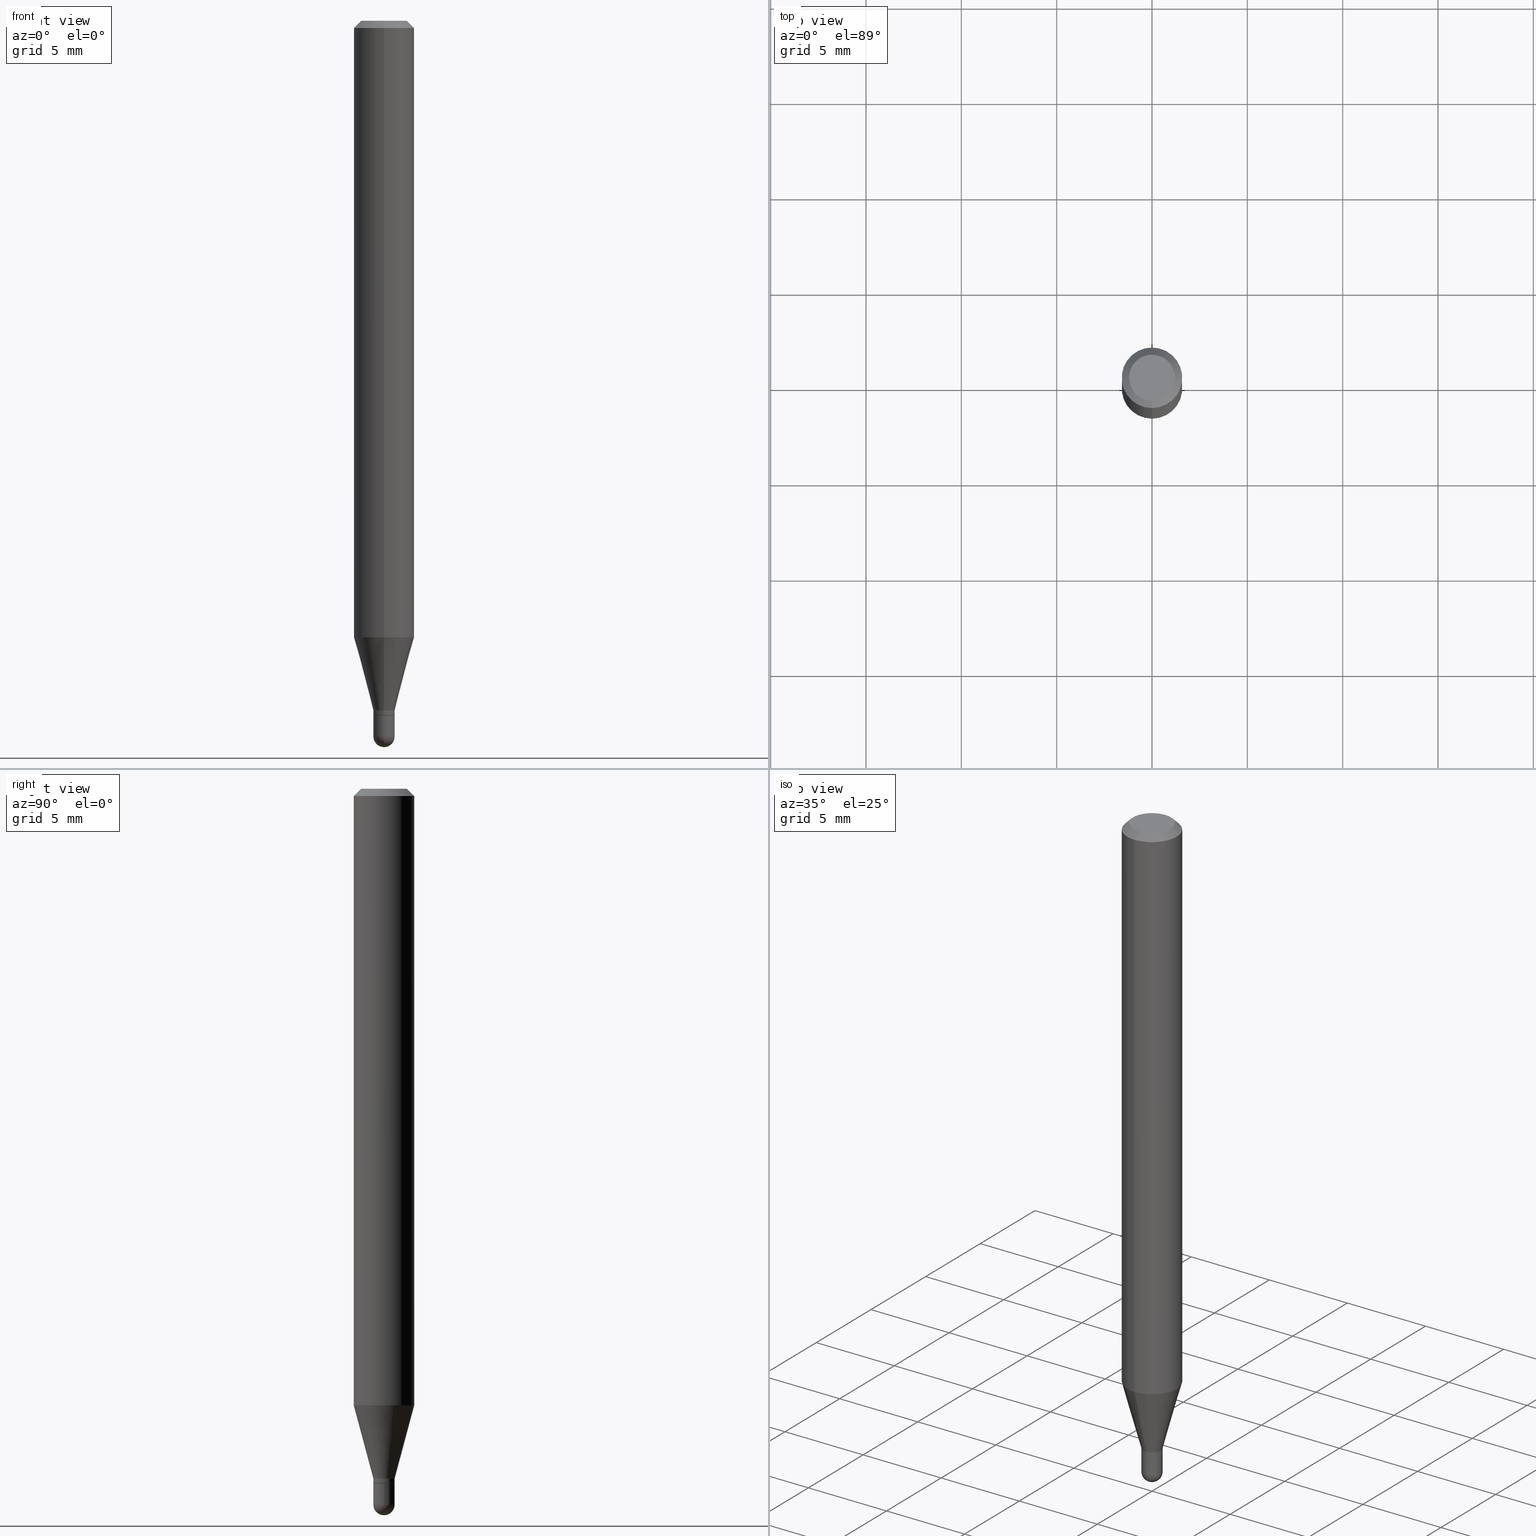
[diagram: canonical four-view strip — front | top / right | iso, engineering-drawing reading convention]
A machine part, canonical four-view strip (front | top / right | iso — engineering-drawing reading convention). The complete STEP part file that produces these views, byte-faithful:
ISO-10303-21;
HEADER;
FILE_DESCRIPTION (( 'STEP AP203' ),
    '1' );
FILE_NAME ('02507.STEP',
    '2024-03-07T20:09:17',
    ( '' ),
    ( '' ),
    'SwSTEP 2.0',
    'SolidWorks 2023',
    '' );
FILE_SCHEMA (( 'CONFIG_CONTROL_DESIGN' ));
ENDSEC;

DATA;
#1 = DIRECTION ( 'NONE',  ( -1.000000000000000000, 6.982962677686265922E-15, -4.876176775795935793E-29 ) ) ;
#2 = ORIENTED_EDGE ( 'NONE', *, *, #244, .F. ) ;
#3 = ADVANCED_FACE ( 'NONE', ( #24 ), #445, .T. ) ;
#4 = AXIS2_PLACEMENT_3D ( 'NONE', #192, #302, #383 ) ;
#5 = VECTOR ( 'NONE', #463, 39.37007874015748143 ) ;
#6 = AXIS2_PLACEMENT_3D ( 'NONE', #30, #499, #507 ) ;
#7 = EDGE_CURVE ( 'NONE', #113, #418, #471, .T. ) ;
#8 = PERSON_AND_ORGANIZATION_ROLE ( 'design_supplier' ) ;
#9 = ADVANCED_FACE ( 'NONE', ( #448 ), #180, .T. ) ;
#10 = ORIENTED_EDGE ( 'NONE', *, *, #478, .F. ) ;
#11 = CONICAL_SURFACE ( 'NONE', #444, 0.02199999999999992240, 0.2617993877991502960 ) ;
#12 = APPROVAL_DATE_TIME ( #365, #279 ) ;
#13 = EDGE_LOOP ( 'NONE', ( #453, #57, #212, #45 ) ) ;
#14 = DIRECTION ( 'NONE',  ( -2.445462405092277740E-29, 3.491490505572446944E-15, 1.000000000000000000 ) ) ;
#15 = PERSON_AND_ORGANIZATION_ROLE ( 'creator' ) ;
#16 = APPROVAL_STATUS ( 'not_yet_approved' ) ;
#17 = VERTEX_POINT ( 'NONE', #185 ) ;
#18 = FACE_OUTER_BOUND ( 'NONE', #236, .T. ) ;
#19 = ADVANCED_FACE ( 'NONE', ( #101 ), #338, .F. ) ;
#20 = ORIENTED_EDGE ( 'NONE', *, *, #395, .F. ) ;
#21 = AXIS2_PLACEMENT_3D ( 'NONE', #378, #79, #28 ) ;
#22 = CARTESIAN_POINT ( 'NONE',  ( 0.000000000000000000, 0.000000000000000000, 0.000000000000000000 ) ) ;
#23 = CIRCLE ( 'NONE', #129, 0.04749999999999999362 ) ;
#24 = FACE_OUTER_BOUND ( 'NONE', #428, .T. ) ;
#25 = CARTESIAN_POINT ( 'NONE',  ( 1.563194018672584673E-16, 0.02199999999999488476, -1.478000000000000425 ) ) ;
#26 = DIRECTION ( 'NONE',  ( 2.445462405092277740E-29, -3.491490505572446944E-15, -1.000000000000000000 ) ) ;
#27 = DIRECTION ( 'NONE',  ( -6.982962677686265922E-15, -1.000000000000000000, 4.370956789862821150E-15 ) ) ;
#28 = DIRECTION ( 'NONE',  ( 1.000000000000000000, -6.982962677686245411E-15, 0.000000000000000000 ) ) ;
#29 = CARTESIAN_POINT ( 'NONE',  ( 3.506802268069485929E-29, -5.006784239901070239E-15, -1.434000000000000163 ) ) ;
#30 = CARTESIAN_POINT ( 'NONE',  ( 0.000000000000000000, 0.000000000000000000, 0.000000000000000000 ) ) ;
#31 = DIRECTION ( 'NONE',  ( -6.982962677686265133E-15, -1.000000000000000000, 0.000000000000000000 ) ) ;
#32 = VECTOR ( 'NONE', #36, 39.37007874015748143 ) ;
#33 = CARTESIAN_POINT ( 'NONE',  ( 3.612521529705438074E-29, -5.163103641768293997E-15, -1.478000000000000203 ) ) ;
#34 = DIRECTION ( 'NONE',  ( -2.445462405092277460E-29, 3.491490505572446944E-15, 1.000000000000000000 ) ) ;
#35 = ADVANCED_FACE ( 'NONE', ( #217 ), #331, .T. ) ;
#36 = DIRECTION ( 'NONE',  ( -2.445468806185136877E-29, 3.491481338843145188E-15, 1.000000000000000000 ) ) ;
#37 = FACE_OUTER_BOUND ( 'NONE', #417, .T. ) ;
#38 = LINE ( 'NONE', #393, #355 ) ;
#39 = CARTESIAN_POINT ( 'NONE',  ( 4.440892098500625669E-16, 0.06250000000000000000, -2.182181565982779340E-16 ) ) ;
#40 = CARTESIAN_POINT ( 'NONE',  ( 8.024699591735033216E-45, -1.145720432106038459E-30, -3.281465122925178518E-16 ) ) ;
#41 = CARTESIAN_POINT ( 'NONE',  ( 3.614402895541633401E-29, -5.160409418810170442E-15, -1.478000000000000425 ) ) ;
#42 = EDGE_LOOP ( 'NONE', ( #53, #464 ) ) ;
#43 = EDGE_CURVE ( 'NONE', #483, #501, #222, .T. ) ;
#44 = LINE ( 'NONE', #202, #161 ) ;
#45 = ORIENTED_EDGE ( 'NONE', *, *, #247, .F. ) ;
#46 = CC_DESIGN_PERSON_AND_ORGANIZATION_ASSIGNMENT ( #91, #49, ( #93 ) ) ;
#47 = PERSON_AND_ORGANIZATION_ROLE ( 'creator' ) ;
#48 = VECTOR ( 'NONE', #350, 39.37007874015748143 ) ;
#49 = PERSON_AND_ORGANIZATION_ROLE ( 'classification_officer' ) ;
#50 = ADVANCED_FACE ( 'NONE', ( #68 ), #385, .T. ) ;
#51 = ORIENTED_EDGE ( 'NONE', *, *, #404, .F. ) ;
#52 = APPROVAL_ROLE ( '' ) ;
#53 = ORIENTED_EDGE ( 'NONE', *, *, #43, .F. ) ;
#54 = CLOSED_SHELL ( 'NONE', ( #3, #156, #503, #35, #423, #232, #163, #50, #19, #136, #267, #447 ) ) ;
#55 = AXIS2_PLACEMENT_3D ( 'NONE', #258, #147, #218 ) ;
#56 = EDGE_CURVE ( 'NONE', #319, #201, #344, .T. ) ;
#57 = ORIENTED_EDGE ( 'NONE', *, *, #56, .T. ) ;
#58 = CARTESIAN_POINT ( 'NONE',  ( 4.440892098500938748E-16, 0.06249999999999995143, -0.01500000000000054588 ) ) ;
#59 = DATE_TIME_ROLE ( 'creation_date' ) ;
#60 = DIRECTION ( 'NONE',  ( -2.445462405092277460E-29, 3.491490505572446944E-15, 1.000000000000000000 ) ) ;
#61 = ORIENTED_EDGE ( 'NONE', *, *, #139, .T. ) ;
#62 =( CONVERSION_BASED_UNIT ( 'INCH', #262 ) LENGTH_UNIT ( ) NAMED_UNIT ( #495 ) );
#63 = DIRECTION ( 'NONE',  ( -6.982962677686265133E-15, -1.000000000000000000, 0.000000000000000000 ) ) ;
#64 = ORIENTED_EDGE ( 'NONE', *, *, #489, .T. ) ;
#65 = PERSON ( 'UNSPECIFIED', 'UNSPECIFIED', 'UNSPECIFIED', ('UNSPECIFIED'), ('UNSPECIFIED'), ('UNSPECIFIED') ) ;
#66 = AXIS2_PLACEMENT_3D ( 'NONE', #421, #431, #510 ) ;
#67 = CC_DESIGN_SECURITY_CLASSIFICATION ( #93, ( #78 ) ) ;
#68 = FACE_OUTER_BOUND ( 'NONE', #157, .T. ) ;
#69 = DIRECTION ( 'NONE',  ( -2.445462405092277740E-29, 3.491490505572446944E-15, 1.000000000000000000 ) ) ;
#70 = EDGE_CURVE ( 'NONE', #368, #240, #504, .T. ) ;
#71 = ORIENTED_EDGE ( 'NONE', *, *, #159, .F. ) ;
#72 = DIRECTION ( 'NONE',  ( -2.445462405092277740E-29, 3.491490505572446944E-15, 1.000000000000000000 ) ) ;
#73 = CYLINDRICAL_SURFACE ( 'NONE', #6, 0.02199999999999992240 ) ;
#74 = COORDINATED_UNIVERSAL_TIME_OFFSET ( 5, 0, .BEHIND. ) ;
#75 = VERTEX_POINT ( 'NONE', #430 ) ;
#76 = DIRECTION ( 'NONE',  ( 1.839019923739600315E-15, 0.2588190451025249583, 0.9659258262890670910 ) ) ;
#77 = AXIS2_PLACEMENT_3D ( 'NONE', #449, #486, #343 ) ;
#78 = PRODUCT_DEFINITION_FORMATION_WITH_SPECIFIED_SOURCE ( 'ANY', '', #281, .NOT_KNOWN. ) ;
#79 = DIRECTION ( 'NONE',  ( -2.445468806185136597E-29, 3.491481338843145583E-15, 1.000000000000000000 ) ) ;
#80 = DIRECTION ( 'NONE',  ( 1.000000000000000000, -6.982962677686266711E-15, 4.883557194083112901E-29 ) ) ;
#81 = CARTESIAN_POINT ( 'NONE',  ( -0.02199999999999999872, 1.563194018672220318E-16, -1.082165719856079240E-30 ) ) ;
#82 = ORIENTED_EDGE ( 'NONE', *, *, #250, .F. ) ;
#83 = VECTOR ( 'NONE', #306, 39.37007874015748143 ) ;
#84 = DIRECTION ( 'NONE',  ( -2.445468806185136597E-29, 3.491481338843145583E-15, 1.000000000000000000 ) ) ;
#85 = CIRCLE ( 'NONE', #397, 0.02199999999999992240 ) ;
#86 = ORIENTED_EDGE ( 'NONE', *, *, #177, .T. ) ;
#87 = EDGE_CURVE ( 'NONE', #418, #146, #196, .T. ) ;
#88 = DIRECTION ( 'NONE',  ( -2.445468806185136877E-29, 3.491481338843145188E-15, 1.000000000000000000 ) ) ;
#89 = VERTEX_POINT ( 'NONE', #506 ) ;
#90 = DATE_AND_TIME ( #440, #100 ) ;
#91 = PERSON_AND_ORGANIZATION ( #65, #223 ) ;
#92 = AXIS2_PLACEMENT_3D ( 'NONE', #158, #195, #398 ) ;
#93 = SECURITY_CLASSIFICATION ( '', '', #291 ) ;
#94 =( GEOMETRIC_REPRESENTATION_CONTEXT ( 3 ) GLOBAL_UNCERTAINTY_ASSIGNED_CONTEXT ( ( #269 ) ) GLOBAL_UNIT_ASSIGNED_CONTEXT ( ( #62, #137, #330 ) ) REPRESENTATION_CONTEXT ( 'NONE', 'WORKASPACE' ) );
#95 = APPROVAL_STATUS ( 'not_yet_approved' ) ;
#96 = ORIENTED_EDGE ( 'NONE', *, *, #489, .F. ) ;
#97 = ORIENTED_EDGE ( 'NONE', *, *, #318, .F. ) ;
#98 = DIRECTION ( 'NONE',  ( -2.445462405092277740E-29, 3.491490505572446944E-15, 1.000000000000000000 ) ) ;
#99 = VECTOR ( 'NONE', #488, 39.37007874015748143 ) ;
#100 = LOCAL_TIME ( 15, 9, 17.00000000000000000, #131 ) ;
#101 = FACE_OUTER_BOUND ( 'NONE', #371, .T. ) ;
#102 = ORIENTED_EDGE ( 'NONE', *, *, #314, .T. ) ;
#103 = APPLICATION_PROTOCOL_DEFINITION ( 'international standard', 'config_control_design', 1994, #484 ) ;
#104 = DIRECTION ( 'NONE',  ( -6.982962677686266711E-15, -1.000000000000000000, 0.000000000000000000 ) ) ;
#105 = ADVANCED_FACE ( 'NONE', ( #391 ), #115, .T. ) ;
#106 = DIRECTION ( 'NONE',  ( -1.807323732225330139E-15, -0.2588190451025181860, 0.9659258262890689783 ) ) ;
#107 = ORIENTED_EDGE ( 'NONE', *, *, #352, .T. ) ;
#108 = AXIS2_PLACEMENT_3D ( 'NONE', #389, #277, #386 ) ;
#109 = LOCAL_TIME ( 15, 9, 17.00000000000000000, #325 ) ;
#110 = CYLINDRICAL_SURFACE ( 'NONE', #77, 0.06250000000000000000 ) ;
#111 = DIRECTION ( 'NONE',  ( -6.982962677686266711E-15, -1.000000000000000000, 0.000000000000000000 ) ) ;
#112 = APPROVAL_STATUS ( 'not_yet_approved' ) ;
#113 = VERTEX_POINT ( 'NONE', #354 ) ;
#114 = ORIENTED_EDGE ( 'NONE', *, *, #247, .T. ) ;
#115 = CYLINDRICAL_SURFACE ( 'NONE', #396, 0.02199999999999999872 ) ;
#116 = CIRCLE ( 'NONE', #55, 0.02199999999999999872 ) ;
#117 = CC_DESIGN_APPROVAL ( #279, ( #406 ) ) ;
#118 = CARTESIAN_POINT ( 'NONE',  ( 3.002043058586750864E-16, 0.02199999999999494721, -1.424000000000000377 ) ) ;
#119 = PLANE ( 'NONE',  #407 ) ;
#120 = CARTESIAN_POINT ( 'NONE',  ( 3.612521529705438074E-29, -5.163103641768293997E-15, -1.478000000000000203 ) ) ;
#121 = ORIENTED_EDGE ( 'NONE', *, *, #194, .F. ) ;
#122 = DIRECTION ( 'NONE',  ( 1.000000000000000000, -6.982962677686265922E-15, 4.876176775795936353E-29 ) ) ;
#123 = CARTESIAN_POINT ( 'NONE',  ( -1.536251789090624606E-16, -0.02200000000000489411, -1.424000000000000377 ) ) ;
#124 = APPROVAL ( #112, 'UNSPECIFIED' ) ;
#125 = DIRECTION ( 'NONE',  ( 1.000000000000000000, -6.982962677686245411E-15, 0.000000000000000000 ) ) ;
#126 = ORIENTED_EDGE ( 'NONE', *, *, #56, .F. ) ;
#127 = AXIS2_PLACEMENT_3D ( 'NONE', #265, #197, #283 ) ;
#128 = DIRECTION ( 'NONE',  ( -6.982962677686267499E-15, -1.000000000000000000, 0.000000000000000000 ) ) ;
#129 = AXIS2_PLACEMENT_3D ( 'NONE', #40, #419, #155 ) ;
#130 = EDGE_LOOP ( 'NONE', ( #166, #468, #290, #71 ) ) ;
#131 = COORDINATED_UNIVERSAL_TIME_OFFSET ( 5, 0, .BEHIND. ) ;
#132 = LINE ( 'NONE', #436, #455 ) ;
#133 = DIRECTION ( 'NONE',  ( 2.445462405092277740E-29, -3.491490505572446944E-15, -1.000000000000000000 ) ) ;
#134 = CIRCLE ( 'NONE', #276, 0.02199999999999999872 ) ;
#135 = ORIENTED_EDGE ( 'NONE', *, *, #194, .T. ) ;
#136 = ADVANCED_FACE ( 'NONE', ( #273 ), #189, .F. ) ;
#137 =( NAMED_UNIT ( * ) PLANE_ANGLE_UNIT ( ) SI_UNIT ( $, .RADIAN. ) );
#138 = ORIENTED_EDGE ( 'NONE', *, *, #364, .F. ) ;
#139 = EDGE_CURVE ( 'NONE', #501, #418, #239, .T. ) ;
#140 = CALENDAR_DATE ( 2024, 7, 3 ) ;
#141 = DIRECTION ( 'NONE',  ( -6.982962677686265922E-15, -1.000000000000000000, 3.491490505572446944E-15 ) ) ;
#142 = LINE ( 'NONE', #412, #150 ) ;
#143 = CIRCLE ( 'NONE', #249, 0.02199999999999999872 ) ;
#144 = DIRECTION ( 'NONE',  ( 1.000000000000000000, -6.982962677686245411E-15, 0.000000000000000000 ) ) ;
#145 = DESIGN_CONTEXT ( 'detailed design', #484, 'design' ) ;
#146 = VERTEX_POINT ( 'NONE', #118 ) ;
#147 = DIRECTION ( 'NONE',  ( -2.445468806185136597E-29, 3.491481338843145583E-15, 1.000000000000000000 ) ) ;
#148 = DIRECTION ( 'NONE',  ( 1.000000000000000000, -6.982962677686245411E-15, 0.000000000000000000 ) ) ;
#149 = EDGE_LOOP ( 'NONE', ( #126, #135, #114, #20 ) ) ;
#150 = VECTOR ( 'NONE', #60, 39.37007874015748143 ) ;
#151 = CARTESIAN_POINT ( 'NONE',  ( 1.563194018672214402E-16, 0.02199999999999992240, -7.681279112259355281E-17 ) ) ;
#152 = DIRECTION ( 'NONE',  ( 4.937700262164548042E-15, 0.7071067811865451302, -0.7071067811865499042 ) ) ;
#153 = APPROVAL_PERSON_ORGANIZATION ( #295, #279, #52 ) ;
#154 = CARTESIAN_POINT ( 'NONE',  ( 3.612521529705438074E-29, -5.163103641768293997E-15, -1.478000000000000203 ) ) ;
#155 = DIRECTION ( 'NONE',  ( -6.982962677686266711E-15, -1.000000000000000000, 3.491490505572446944E-15 ) ) ;
#156 = ADVANCED_FACE ( 'NONE', ( #37 ), #287, .T. ) ;
#157 = EDGE_LOOP ( 'NONE', ( #2, #227, #496, #437 ) ) ;
#158 = CARTESIAN_POINT ( 'NONE',  ( 3.482338464851404049E-29, -4.971882479935166076E-15, -1.424000000000000377 ) ) ;
#159 = EDGE_CURVE ( 'NONE', #240, #75, #366, .T. ) ;
#160 = DIRECTION ( 'NONE',  ( -2.445462405092277740E-29, 3.491490505572446944E-15, 1.000000000000000000 ) ) ;
#161 = VECTOR ( 'NONE', #76, 39.37007874015748143 ) ;
#162 = APPROVAL_PERSON_ORGANIZATION ( #458, #124, #337 ) ;
#163 = ADVANCED_FACE ( 'NONE', ( #379 ), #110, .T. ) ;
#164 = FACE_OUTER_BOUND ( 'NONE', #326, .T. ) ;
#165 = CYLINDRICAL_SURFACE ( 'NONE', #66, 0.02199999999999999872 ) ;
#166 = ORIENTED_EDGE ( 'NONE', *, *, #336, .F. ) ;
#167 = CARTESIAN_POINT ( 'NONE',  ( 3.112711572127344599E-29, -4.444150471517067241E-15, -1.272851942293461214 ) ) ;
#168 = CARTESIAN_POINT ( 'NONE',  ( 1.545430450278565143E-16, 0.02149999999999498840, -1.434000000000000163 ) ) ;
#169 = DIRECTION ( 'NONE',  ( -4.937700262164674260E-15, -0.7071067811865632269, 0.7071067811865319186 ) ) ;
#170 = ORIENTED_EDGE ( 'NONE', *, *, #285, .T. ) ;
#171 = VECTOR ( 'NONE', #106, 39.37007874015748143 ) ;
#172 = APPROVAL_DATE_TIME ( #90, #238 ) ;
#173 = DIRECTION ( 'NONE',  ( -6.982962677686265133E-15, -1.000000000000000000, 0.000000000000000000 ) ) ;
#174 = ORIENTED_EDGE ( 'NONE', *, *, #87, .T. ) ;
#175 = AXIS2_PLACEMENT_3D ( 'NONE', #266, #182, #409 ) ;
#176 = AXIS2_PLACEMENT_3D ( 'NONE', #255, #289, #173 ) ;
#177 = EDGE_CURVE ( 'NONE', #501, #483, #491, .T. ) ;
#178 = ORIENTED_EDGE ( 'NONE', *, *, #87, .F. ) ;
#179 = COORDINATED_UNIVERSAL_TIME_OFFSET ( 5, 0, .BEHIND. ) ;
#180 = SPHERICAL_SURFACE ( 'NONE', #424, 0.02200000000000009934 ) ;
#181 = APPLICATION_PROTOCOL_DEFINITION ( 'international standard', 'config_control_design', 1994, #456 ) ;
#182 = DIRECTION ( 'NONE',  ( -2.445462405092277740E-29, 3.491490505572446944E-15, 1.000000000000000000 ) ) ;
#183 = CC_DESIGN_PERSON_AND_ORGANIZATION_ASSIGNMENT ( #369, #15, ( #406 ) ) ;
#184 = AXIS2_PLACEMENT_3D ( 'NONE', #41, #84, #470 ) ;
#185 = CARTESIAN_POINT ( 'NONE',  ( -1.536251789090620662E-16, -0.02200000000000521330, -1.478000000000000425 ) ) ;
#186 = DIRECTION ( 'NONE',  ( -6.982962677686266711E-15, -1.000000000000000000, 0.000000000000000000 ) ) ;
#187 = EDGE_LOOP ( 'NONE', ( #405, #433, #263, #224 ) ) ;
#188 = DIRECTION ( 'NONE',  ( 6.982962677686265922E-15, 1.000000000000000000, -3.483106191921935554E-15 ) ) ;
#189 = PLANE ( 'NONE',  #108 ) ;
#190 = CARTESIAN_POINT ( 'NONE',  ( 3.505570357699780654E-29, -5.005051639738103749E-15, -1.433500000000000218 ) ) ;
#191 = DATE_AND_TIME ( #480, #426 ) ;
#192 = CARTESIAN_POINT ( 'NONE',  ( 3.505570357699780654E-29, -5.005051639738103749E-15, -1.433500000000000218 ) ) ;
#193 = CIRCLE ( 'NONE', #293, 0.06250000000000000000 ) ;
#194 = EDGE_CURVE ( 'NONE', #319, #370, #454, .T. ) ;
#195 = DIRECTION ( 'NONE',  ( -2.445462405092277740E-29, 3.491490505572446944E-15, 1.000000000000000000 ) ) ;
#196 = LINE ( 'NONE', #151, #322 ) ;
#197 = DIRECTION ( 'NONE',  ( -2.445462405092277740E-29, 3.491490505572446944E-15, 1.000000000000000000 ) ) ;
#198 = CARTESIAN_POINT ( 'NONE',  ( 3.665381160523413866E-29, -5.241263342701905875E-15, -1.500000000000000444 ) ) ;
#199 = EDGE_CURVE ( 'NONE', #75, #17, #116, .T. ) ;
#200 = CIRCLE ( 'NONE', #481, 0.06250000000000000000 ) ;
#201 = VERTEX_POINT ( 'NONE', #58 ) ;
#202 = CARTESIAN_POINT ( 'NONE',  ( 1.563194018672562733E-16, 0.02199999999999494721, -1.424000000000000377 ) ) ;
#203 = VERTEX_POINT ( 'NONE', #332 ) ;
#204 = CARTESIAN_POINT ( 'NONE',  ( 3.482338464851404049E-29, -4.971882479935166076E-15, -1.424000000000000377 ) ) ;
#205 = CIRCLE ( 'NONE', #333, 0.04749999999999999362 ) ;
#206 = CARTESIAN_POINT ( 'NONE',  ( 3.668193607638497220E-31, -5.237235758358785737E-17, -0.01500000000000032904 ) ) ;
#207 = COORDINATED_UNIVERSAL_TIME_OFFSET ( 5, 0, .BEHIND. ) ;
#208 = DIRECTION ( 'NONE',  ( 1.000000000000000000, 0.000000000000000000, 0.000000000000000000 ) ) ;
#209 = ORIENTED_EDGE ( 'NONE', *, *, #388, .F. ) ;
#210 = PRODUCT_RELATED_PRODUCT_CATEGORY ( 'detail', '', ( #281 ) ) ;
#211 = CALENDAR_DATE ( 2024, 7, 3 ) ;
#212 = ORIENTED_EDGE ( 'NONE', *, *, #298, .F. ) ;
#213 = AXIS2_PLACEMENT_3D ( 'NONE', #414, #451, #104 ) ;
#214 = DIRECTION ( 'NONE',  ( 0.000000000000000000, 0.000000000000000000, 1.000000000000000000 ) ) ;
#215 = ORIENTED_EDGE ( 'NONE', *, *, #43, .T. ) ;
#216 = MECHANICAL_CONTEXT ( 'NONE', #456, 'mechanical' ) ;
#217 = FACE_OUTER_BOUND ( 'NONE', #13, .T. ) ;
#218 = DIRECTION ( 'NONE',  ( 1.000000000000000000, -6.982962677686245411E-15, 0.000000000000000000 ) ) ;
#219 = EDGE_LOOP ( 'NONE', ( #178, #296, #394, #246 ) ) ;
#220 = DATE_TIME_ROLE ( 'classification_date' ) ;
#221 = CARTESIAN_POINT ( 'NONE',  ( 3.506802268069485929E-29, -5.006784239901070239E-15, -1.434000000000000163 ) ) ;
#222 = CIRCLE ( 'NONE', #213, 0.02149999999999999481 ) ;
#223 = ORGANIZATION ( 'UNSPECIFIED', 'UNSPECIFIED', '' ) ;
#224 = ORIENTED_EDGE ( 'NONE', *, *, #285, .F. ) ;
#225 = CARTESIAN_POINT ( 'NONE',  ( 3.668193607638497220E-31, -5.237235758358785737E-17, -0.01500000000000032904 ) ) ;
#226 = DIRECTION ( 'NONE',  ( -2.445468806185136597E-29, 3.491481338843145583E-15, 1.000000000000000000 ) ) ;
#227 = ORIENTED_EDGE ( 'NONE', *, *, #340, .F. ) ;
#228 = CARTESIAN_POINT ( 'NONE',  ( 0.000000000000000000, 0.000000000000000000, 0.000000000000000000 ) ) ;
#229 = CARTESIAN_POINT ( 'NONE',  ( 3.112711572127344599E-29, -4.444150471517067241E-15, -1.272851942293461214 ) ) ;
#230 = DIRECTION ( 'NONE',  ( -6.982962677686266711E-15, -1.000000000000000000, 0.000000000000000000 ) ) ;
#231 = ORIENTED_EDGE ( 'NONE', *, *, #244, .T. ) ;
#232 = ADVANCED_FACE ( 'NONE', ( #18 ), #11, .T. ) ;
#233 = LINE ( 'NONE', #380, #367 ) ;
#234 = APPROVAL_DATE_TIME ( #450, #124 ) ;
#235 = LINE ( 'NONE', #284, #5 ) ;
#236 = EDGE_LOOP ( 'NONE', ( #446, #377, #170, #121 ) ) ;
#237 = MANIFOLD_SOLID_BREP ( 'Body-Move/Copy2[2]', #54 ) ;
#238 = APPROVAL ( #16, 'UNSPECIFIED' ) ;
#239 = LINE ( 'NONE', #427, #83 ) ;
#240 = VERTEX_POINT ( 'NONE', #25 ) ;
#241 = AXIS2_PLACEMENT_3D ( 'NONE', #229, #98, #27 ) ;
#242 = APPROVAL_PERSON_ORGANIZATION ( #402, #238, #321 ) ;
#243 = ORIENTED_EDGE ( 'NONE', *, *, #352, .F. ) ;
#244 = EDGE_CURVE ( 'NONE', #89, #441, #328, .T. ) ;
#245 = FACE_OUTER_BOUND ( 'NONE', #187, .T. ) ;
#246 = ORIENTED_EDGE ( 'NONE', *, *, #400, .F. ) ;
#247 = EDGE_CURVE ( 'NONE', #370, #441, #142, .T. ) ;
#248 = PERSON_AND_ORGANIZATION ( #65, #223 ) ;
#249 = AXIS2_PLACEMENT_3D ( 'NONE', #221, #372, #144 ) ;
#250 = EDGE_CURVE ( 'NONE', #490, #282, #143, .T. ) ;
#251 = CARTESIAN_POINT ( 'NONE',  ( 1.563194018672559528E-16, 0.02199999999999483966, -1.433500000000000218 ) ) ;
#252 = CIRCLE ( 'NONE', #176, 0.02199999999999992240 ) ;
#253 =( LENGTH_UNIT ( ) NAMED_UNIT ( * ) SI_UNIT ( $, .METRE. ) );
#254 = ORIENTED_EDGE ( 'NONE', *, *, #70, .T. ) ;
#255 = CARTESIAN_POINT ( 'NONE',  ( 3.482338464851404049E-29, -4.971882479935166076E-15, -1.424000000000000377 ) ) ;
#256 = PERSON_AND_ORGANIZATION ( #65, #223 ) ;
#257 = ORIENTED_EDGE ( 'NONE', *, *, #298, .T. ) ;
#258 = CARTESIAN_POINT ( 'NONE',  ( 3.614402895541633401E-29, -5.160409418810170442E-15, -1.478000000000000425 ) ) ;
#259 = AXIS2_PLACEMENT_3D ( 'NONE', #280, #457, #111 ) ;
#260 = CLOSED_SHELL ( 'NONE', ( #361, #9, #301, #482, #105 ) ) ;
#261 = DATE_AND_TIME ( #299, #492 ) ;
#262 = LENGTH_MEASURE_WITH_UNIT ( LENGTH_MEASURE( 0.02539999999999999897 ), #253 );
#263 = ORIENTED_EDGE ( 'NONE', *, *, #309, .F. ) ;
#264 = FACE_OUTER_BOUND ( 'NONE', #399, .T. ) ;
#265 = CARTESIAN_POINT ( 'NONE',  ( 3.668193607638497220E-31, -5.237235758358785737E-17, -0.01500000000000032904 ) ) ;
#266 = CARTESIAN_POINT ( 'NONE',  ( 3.506793088902326260E-29, -5.006797384990888364E-15, -1.434000000000000163 ) ) ;
#267 = ADVANCED_FACE ( 'NONE', ( #264 ), #305, .T. ) ;
#268 = CARTESIAN_POINT ( 'NONE',  ( 3.614402895541633401E-29, -5.160409418810170442E-15, -1.478000000000000425 ) ) ;
#269 = UNCERTAINTY_MEASURE_WITH_UNIT (LENGTH_MEASURE( 1.000000000000000082E-05 ), #62, 'distance_accuracy_value', 'NONE');
#270 = DIRECTION ( 'NONE',  ( -6.982962677686265133E-15, -1.000000000000000000, 0.000000000000000000 ) ) ;
#271 = CARTESIAN_POINT ( 'NONE',  ( 0.02199999999999999872, -5.160409418810168075E-15, -1.434000000000000163 ) ) ;
#272 = ORIENTED_EDGE ( 'NONE', *, *, #199, .T. ) ;
#273 = FACE_OUTER_BOUND ( 'NONE', #42, .T. ) ;
#274 = FACE_OUTER_BOUND ( 'NONE', #358, .T. ) ;
#275 = AXIS2_PLACEMENT_3D ( 'NONE', #342, #493, #487 ) ;
#276 = AXIS2_PLACEMENT_3D ( 'NONE', #29, #460, #125 ) ;
#277 = DIRECTION ( 'NONE',  ( -2.445462405092277460E-29, 3.491490505572446944E-15, 1.000000000000000000 ) ) ;
#278 = CC_DESIGN_APPROVAL ( #124, ( #93 ) ) ;
#279 = APPROVAL ( #95, 'UNSPECIFIED' ) ;
#280 = CARTESIAN_POINT ( 'NONE',  ( 3.506793088902326260E-29, -5.006797384990888364E-15, -1.434000000000000163 ) ) ;
#281 = PRODUCT ( '02507', '02507', '', ( #216 ) ) ;
#282 = VERTEX_POINT ( 'NONE', #339 ) ;
#283 = DIRECTION ( 'NONE',  ( -6.982962677686265922E-15, -1.000000000000000000, 3.483106191921935554E-15 ) ) ;
#284 = CARTESIAN_POINT ( 'NONE',  ( -1.536251789090972937E-16, -0.02199999999999992240, 7.681279112259355281E-17 ) ) ;
#285 = EDGE_CURVE ( 'NONE', #505, #370, #303, .T. ) ;
#286 = ORIENTED_EDGE ( 'NONE', *, *, #475, .F. ) ;
#287 = CONICAL_SURFACE ( 'NONE', #259, 0.02149999999999999481, 0.7853981633974739252 ) ;
#288 = LOCAL_TIME ( 15, 9, 17.00000000000000000, #74 ) ;
#289 = DIRECTION ( 'NONE',  ( -2.445462405092277740E-29, 3.491490505572446944E-15, 1.000000000000000000 ) ) ;
#290 = ORIENTED_EDGE ( 'NONE', *, *, #199, .F. ) ;
#291 = SECURITY_CLASSIFICATION_LEVEL ( 'unclassified' ) ;
#292 = CC_DESIGN_DATE_AND_TIME_ASSIGNMENT ( #191, #220, ( #93 ) ) ;
#293 = AXIS2_PLACEMENT_3D ( 'NONE', #167, #317, #469 ) ;
#294 = AXIS2_PLACEMENT_3D ( 'NONE', #413, #80, #230 ) ;
#295 = PERSON_AND_ORGANIZATION ( #65, #223 ) ;
#296 = ORIENTED_EDGE ( 'NONE', *, *, #475, .T. ) ;
#297 = EDGE_LOOP ( 'NONE', ( #96, #231, #257, #10 ) ) ;
#298 = EDGE_CURVE ( 'NONE', #441, #201, #347, .T. ) ;
#299 = CALENDAR_DATE ( 2024, 7, 3 ) ;
#300 = CIRCLE ( 'NONE', #425, 0.02200000000000009934 ) ;
#301 = ADVANCED_FACE ( 'NONE', ( #164 ), #119, .F. ) ;
#302 = DIRECTION ( 'NONE',  ( -2.445462405092277740E-29, 3.491490505572446944E-15, 1.000000000000000000 ) ) ;
#303 = LINE ( 'NONE', #452, #171 ) ;
#304 = DIRECTION ( 'NONE',  ( -2.445462405092277740E-29, 3.491490505572446944E-15, 1.000000000000000000 ) ) ;
#305 = CONICAL_SURFACE ( 'NONE', #473, 0.02149999999999999481, 0.7853981633974739252 ) ;
#306 = DIRECTION ( 'NONE',  ( 5.024295867788190974E-15, 0.7071067811865681119, 0.7071067811865270336 ) ) ;
#307 = FACE_OUTER_BOUND ( 'NONE', #130, .T. ) ;
#308 = DIRECTION ( 'NONE',  ( -1.000000000000000000, 6.982962677686265922E-15, -4.883557194083112340E-29 ) ) ;
#309 = EDGE_CURVE ( 'NONE', #370, #319, #193, .T. ) ;
#310 = DIRECTION ( 'NONE',  ( 7.105427357601001070E-15, 1.000000000000000000, 0.000000000000000000 ) ) ;
#311 = CIRCLE ( 'NONE', #184, 0.02199999999999999872 ) ;
#312 = AXIS2_PLACEMENT_3D ( 'NONE', #411, #497, #141 ) ;
#313 = ORIENTED_EDGE ( 'NONE', *, *, #250, .T. ) ;
#314 = EDGE_CURVE ( 'NONE', #282, #490, #134, .T. ) ;
#315 = CARTESIAN_POINT ( 'NONE',  ( 0.02199999999999999872, -5.237222008264718177E-15, -1.478000000000000425 ) ) ;
#316 = ORIENTED_EDGE ( 'NONE', *, *, #318, .T. ) ;
#317 = DIRECTION ( 'NONE',  ( -2.445462405092277740E-29, 3.491490505572446944E-15, 1.000000000000000000 ) ) ;
#318 = EDGE_CURVE ( 'NONE', #75, #282, #429, .T. ) ;
#319 = VERTEX_POINT ( 'NONE', #353 ) ;
#320 = AXIS2_PLACEMENT_3D ( 'NONE', #225, #26, #188 ) ;
#321 = APPROVAL_ROLE ( '' ) ;
#322 = VECTOR ( 'NONE', #34, 39.37007874015748143 ) ;
#323 = ORIENTED_EDGE ( 'NONE', *, *, #70, .F. ) ;
#324 = DIRECTION ( 'NONE',  ( -6.982962677686265922E-15, -1.000000000000000000, 3.483106191921935554E-15 ) ) ;
#325 = COORDINATED_UNIVERSAL_TIME_OFFSET ( 5, 0, .BEHIND. ) ;
#326 = EDGE_LOOP ( 'NONE', ( #313, #102 ) ) ;
#327 = DIRECTION ( 'NONE',  ( 1.000000000000000000, -6.982962677686266711E-15, 4.883557194083112901E-29 ) ) ;
#328 = LINE ( 'NONE', #494, #99 ) ;
#329 = EDGE_CURVE ( 'NONE', #113, #505, #235, .T. ) ;
#330 =( NAMED_UNIT ( * ) SI_UNIT ( $, .STERADIAN. ) SOLID_ANGLE_UNIT ( ) );
#331 = CYLINDRICAL_SURFACE ( 'NONE', #312, 0.06250000000000000000 ) ;
#332 = CARTESIAN_POINT ( 'NONE',  ( 3.840629472727447874E-16, 0.04749999999999999362, -4.939923113072090255E-16 ) ) ;
#333 = AXIS2_PLACEMENT_3D ( 'NONE', #384, #160, #390 ) ;
#334 = CC_DESIGN_APPROVAL ( #238, ( #78 ) ) ;
#335 = EDGE_LOOP ( 'NONE', ( #97, #272, #485, #349, #435 ) ) ;
#336 = EDGE_CURVE ( 'NONE', #356, #240, #300, .T. ) ;
#337 = APPROVAL_ROLE ( '' ) ;
#338 = PLANE ( 'NONE',  #275 ) ;
#339 = CARTESIAN_POINT ( 'NONE',  ( -0.02199999999999999872, -4.927277427488398950E-15, -1.434000000000000163 ) ) ;
#340 = EDGE_CURVE ( 'NONE', #203, #89, #205, .T. ) ;
#341 = CARTESIAN_POINT ( 'NONE',  ( -4.364351673553912750E-16, -0.06250000000000005551, -0.01500000000000011047 ) ) ;
#342 = CARTESIAN_POINT ( 'NONE',  ( 3.316907271900976096E-16, 0.04749999999999999362, -3.299190551609501735E-16 ) ) ;
#343 = DIRECTION ( 'NONE',  ( -6.982962677686265922E-15, -1.000000000000000000, 3.491490505572446944E-15 ) ) ;
#344 = LINE ( 'NONE', #39, #48 ) ;
#345 = DIRECTION ( 'NONE',  ( -6.982962677686266711E-15, -1.000000000000000000, 0.000000000000000000 ) ) ;
#346 = AXIS2_PLACEMENT_3D ( 'NONE', #228, #304, #500 ) ;
#347 = CIRCLE ( 'NONE', #127, 0.06250000000000000000 ) ;
#348 = AXIS2_PLACEMENT_3D ( 'NONE', #22, #214, #208 ) ;
#349 = ORIENTED_EDGE ( 'NONE', *, *, #404, .T. ) ;
#350 = DIRECTION ( 'NONE',  ( -2.445462405092277460E-29, 3.491490505572446944E-15, 1.000000000000000000 ) ) ;
#351 = SPHERICAL_SURFACE ( 'NONE', #294, 0.02200000000000009934 ) ;
#352 = EDGE_CURVE ( 'NONE', #483, #113, #38, .T. ) ;
#353 = CARTESIAN_POINT ( 'NONE',  ( 4.440892098500934804E-16, 0.06249999999999553135, -1.272851942293461436 ) ) ;
#354 = CARTESIAN_POINT ( 'NONE',  ( -1.536251789090627811E-16, -0.02200000000000500167, -1.433500000000000218 ) ) ;
#355 = VECTOR ( 'NONE', #169, 39.37007874015748143 ) ;
#356 = VERTEX_POINT ( 'NONE', #198 ) ;
#357 = CC_DESIGN_PERSON_AND_ORGANIZATION_ASSIGNMENT ( #248, #47, ( #78 ) ) ;
#358 = EDGE_LOOP ( 'NONE', ( #472, #316, #82, #51, #254 ) ) ;
#359 = AXIS2_PLACEMENT_3D ( 'NONE', #268, #226, #148 ) ;
#360 = CONICAL_SURFACE ( 'NONE', #439, 0.06250000000000000000, 0.7853981633974483900 ) ;
#361 = ADVANCED_FACE ( 'NONE', ( #274 ), #165, .T. ) ;
#362 = PERSON_AND_ORGANIZATION_ROLE ( 'design_owner' ) ;
#363 = EDGE_LOOP ( 'NONE', ( #209, #443, #323, #138 ) ) ;
#364 = EDGE_CURVE ( 'NONE', #17, #368, #311, .T. ) ;
#365 = DATE_AND_TIME ( #211, #109 ) ;
#366 = CIRCLE ( 'NONE', #359, 0.02199999999999999872 ) ;
#367 = VECTOR ( 'NONE', #152, 39.37007874015748143 ) ;
#368 = VERTEX_POINT ( 'NONE', #315 ) ;
#369 = PERSON_AND_ORGANIZATION ( #65, #223 ) ;
#370 = VERTEX_POINT ( 'NONE', #467 ) ;
#371 = EDGE_LOOP ( 'NONE', ( #512, #64 ) ) ;
#372 = DIRECTION ( 'NONE',  ( -2.445468806185136597E-29, 3.491481338843145583E-15, 1.000000000000000000 ) ) ;
#373 = ORIENTED_EDGE ( 'NONE', *, *, #329, .F. ) ;
#374 = DIRECTION ( 'NONE',  ( -2.445462405092277740E-29, 3.491490505572446944E-15, 1.000000000000000000 ) ) ;
#375 = EDGE_CURVE ( 'NONE', #505, #146, #461, .T. ) ;
#376 = FACE_OUTER_BOUND ( 'NONE', #219, .T. ) ;
#377 = ORIENTED_EDGE ( 'NONE', *, *, #400, .T. ) ;
#378 = CARTESIAN_POINT ( 'NONE',  ( 3.614402895541633401E-29, -5.160409418810170442E-15, -1.478000000000000425 ) ) ;
#379 = FACE_OUTER_BOUND ( 'NONE', #149, .T. ) ;
#380 = CARTESIAN_POINT ( 'NONE',  ( 4.364351673553919652E-16, 0.06249999999999995143, -0.01500000000000054588 ) ) ;
#381 = SHAPE_DEFINITION_REPRESENTATION ( #465, #410 ) ;
#382 = EDGE_CURVE ( 'NONE', #146, #319, #44, .T. ) ;
#383 = DIRECTION ( 'NONE',  ( -6.982962677686265133E-15, -1.000000000000000000, 0.000000000000000000 ) ) ;
#384 = CARTESIAN_POINT ( 'NONE',  ( 8.024699591735033216E-45, -1.145720432106038459E-30, -3.281465122925178518E-16 ) ) ;
#385 = CONICAL_SURFACE ( 'NONE', #320, 0.06250000000000000000, 0.7853981633974483900 ) ;
#386 = DIRECTION ( 'NONE',  ( -6.982962677686265922E-15, -1.000000000000000000, 3.491490505572446944E-15 ) ) ;
#387 = MANIFOLD_SOLID_BREP ( 'Body-Move/Copy2[1]', #260 ) ;
#388 = EDGE_CURVE ( 'NONE', #356, #17, #438, .T. ) ;
#389 = CARTESIAN_POINT ( 'NONE',  ( 3.506793088902326260E-29, -5.006797384990888364E-15, -1.434000000000000163 ) ) ;
#390 = DIRECTION ( 'NONE',  ( -6.982962677686266711E-15, -1.000000000000000000, 3.491490505572446944E-15 ) ) ;
#391 = FACE_OUTER_BOUND ( 'NONE', #335, .T. ) ;
#392 = CARTESIAN_POINT ( 'NONE',  ( 1.536251789091328911E-16, 0.02199999999999499231, -1.434000000000000163 ) ) ;
#393 = CARTESIAN_POINT ( 'NONE',  ( -1.501336975702196507E-16, -0.02150000000000500469, -1.434000000000000163 ) ) ;
#394 = ORIENTED_EDGE ( 'NONE', *, *, #329, .T. ) ;
#395 = EDGE_CURVE ( 'NONE', #201, #441, #200, .T. ) ;
#396 = AXIS2_PLACEMENT_3D ( 'NONE', #466, #459, #122 ) ;
#397 = AXIS2_PLACEMENT_3D ( 'NONE', #190, #502, #270 ) ;
#398 = DIRECTION ( 'NONE',  ( -6.982962677686265133E-15, -1.000000000000000000, 0.000000000000000000 ) ) ;
#399 = EDGE_LOOP ( 'NONE', ( #432, #86, #107, #286 ) ) ;
#400 = EDGE_CURVE ( 'NONE', #146, #505, #252, .T. ) ;
#401 = AXIS2_PLACEMENT_3D ( 'NONE', #204, #72, #31 ) ;
#402 = PERSON_AND_ORGANIZATION ( #65, #223 ) ;
#403 = ORIENTED_EDGE ( 'NONE', *, *, #375, .F. ) ;
#404 = EDGE_CURVE ( 'NONE', #368, #490, #132, .T. ) ;
#405 = ORIENTED_EDGE ( 'NONE', *, *, #375, .T. ) ;
#406 = PRODUCT_DEFINITION ( 'UNKNOWN', '', #78, #145 ) ;
#407 = AXIS2_PLACEMENT_3D ( 'NONE', #392, #434, #1 ) ;
#408 = ORIENTED_EDGE ( 'NONE', *, *, #7, .F. ) ;
#409 = DIRECTION ( 'NONE',  ( -6.982962677686266711E-15, -1.000000000000000000, 0.000000000000000000 ) ) ;
#410 = ADVANCED_BREP_SHAPE_REPRESENTATION ( '02507', ( #387, #237, #348 ), #94 ) ;
#411 = CARTESIAN_POINT ( 'NONE',  ( 0.000000000000000000, 0.000000000000000000, 0.000000000000000000 ) ) ;
#412 = CARTESIAN_POINT ( 'NONE',  ( -4.364351673553916201E-16, -0.06250000000000000000, 2.182181565982779340E-16 ) ) ;
#413 = CARTESIAN_POINT ( 'NONE',  ( 3.612521529705438074E-29, -5.163103641768293997E-15, -1.478000000000000203 ) ) ;
#414 = CARTESIAN_POINT ( 'NONE',  ( 3.506793088902326260E-29, -5.006797384990888364E-15, -1.434000000000000163 ) ) ;
#415 = CARTESIAN_POINT ( 'NONE',  ( 3.482338464851404049E-29, -4.971882479935166076E-15, -1.424000000000000377 ) ) ;
#416 = AXIS2_PLACEMENT_3D ( 'NONE', #33, #308, #128 ) ;
#417 = EDGE_LOOP ( 'NONE', ( #215, #61, #408, #243 ) ) ;
#418 = VERTEX_POINT ( 'NONE', #251 ) ;
#419 = DIRECTION ( 'NONE',  ( -2.445462405092277740E-29, 3.491490505572446944E-15, 1.000000000000000000 ) ) ;
#420 = CARTESIAN_POINT ( 'NONE',  ( -1.501336975702196507E-16, -0.02150000000000500469, -1.434000000000000163 ) ) ;
#421 = CARTESIAN_POINT ( 'NONE',  ( 0.000000000000000000, 0.000000000000000000, 0.000000000000000000 ) ) ;
#422 = ORIENTED_EDGE ( 'NONE', *, *, #7, .T. ) ;
#423 = ADVANCED_FACE ( 'NONE', ( #245 ), #511, .T. ) ;
#424 = AXIS2_PLACEMENT_3D ( 'NONE', #154, #327, #345 ) ;
#425 = AXIS2_PLACEMENT_3D ( 'NONE', #120, #508, #310 ) ;
#426 = LOCAL_TIME ( 15, 9, 17.00000000000000000, #207 ) ;
#427 = CARTESIAN_POINT ( 'NONE',  ( 1.527666881884565334E-16, 0.02149999999999498840, -1.434000000000000163 ) ) ;
#428 = EDGE_LOOP ( 'NONE', ( #422, #174, #403, #373 ) ) ;
#429 = LINE ( 'NONE', #81, #32 ) ;
#430 = CARTESIAN_POINT ( 'NONE',  ( -0.02199999999999999872, -4.927277427488398950E-15, -1.478000000000000425 ) ) ;
#431 = DIRECTION ( 'NONE',  ( -2.445468806185136597E-29, 3.491481338843145583E-15, 1.000000000000000000 ) ) ;
#432 = ORIENTED_EDGE ( 'NONE', *, *, #139, .F. ) ;
#433 = ORIENTED_EDGE ( 'NONE', *, *, #382, .T. ) ;
#434 = DIRECTION ( 'NONE',  ( 2.438088387897960049E-29, -3.491481338843145188E-15, -1.000000000000000000 ) ) ;
#435 = ORIENTED_EDGE ( 'NONE', *, *, #314, .F. ) ;
#436 = CARTESIAN_POINT ( 'NONE',  ( 0.02199999999999999872, -1.536251789090978361E-16, 1.072758890675105930E-30 ) ) ;
#437 = ORIENTED_EDGE ( 'NONE', *, *, #395, .T. ) ;
#438 = CIRCLE ( 'NONE', #416, 0.02200000000000009934 ) ;
#439 = AXIS2_PLACEMENT_3D ( 'NONE', #479, #133, #474 ) ;
#440 = CALENDAR_DATE ( 2024, 7, 3 ) ;
#441 = VERTEX_POINT ( 'NONE', #341 ) ;
#442 = CC_DESIGN_DATE_AND_TIME_ASSIGNMENT ( #261, #59, ( #406 ) ) ;
#443 = ORIENTED_EDGE ( 'NONE', *, *, #336, .T. ) ;
#444 = AXIS2_PLACEMENT_3D ( 'NONE', #415, #69, #63 ) ;
#445 = CYLINDRICAL_SURFACE ( 'NONE', #346, 0.02199999999999992240 ) ;
#446 = ORIENTED_EDGE ( 'NONE', *, *, #382, .F. ) ;
#447 = ADVANCED_FACE ( 'NONE', ( #376 ), #73, .T. ) ;
#448 = FACE_OUTER_BOUND ( 'NONE', #363, .T. ) ;
#449 = CARTESIAN_POINT ( 'NONE',  ( 0.000000000000000000, 0.000000000000000000, 0.000000000000000000 ) ) ;
#450 = DATE_AND_TIME ( #140, #288 ) ;
#451 = DIRECTION ( 'NONE',  ( -2.445462405092277740E-29, 3.491490505572446944E-15, 1.000000000000000000 ) ) ;
#452 = CARTESIAN_POINT ( 'NONE',  ( -1.536251789090624606E-16, -0.02200000000000489411, -1.424000000000000377 ) ) ;
#453 = ORIENTED_EDGE ( 'NONE', *, *, #309, .T. ) ;
#454 = CIRCLE ( 'NONE', #241, 0.06250000000000000000 ) ;
#455 = VECTOR ( 'NONE', #88, 39.37007874015748143 ) ;
#456 = APPLICATION_CONTEXT ( 'configuration controlled 3d designs of mechanical parts and assemblies' ) ;
#457 = DIRECTION ( 'NONE',  ( -2.445462405092277740E-29, 3.491490505572446944E-15, 1.000000000000000000 ) ) ;
#458 = PERSON_AND_ORGANIZATION ( #65, #223 ) ;
#459 = DIRECTION ( 'NONE',  ( -2.445468806185136597E-29, 3.491481338843145583E-15, 1.000000000000000000 ) ) ;
#460 = DIRECTION ( 'NONE',  ( -2.445468806185136597E-29, 3.491481338843145583E-15, 1.000000000000000000 ) ) ;
#461 = CIRCLE ( 'NONE', #92, 0.02199999999999992240 ) ;
#462 = CC_DESIGN_PERSON_AND_ORGANIZATION_ASSIGNMENT ( #477, #8, ( #78 ) ) ;
#463 = DIRECTION ( 'NONE',  ( -2.445462405092277460E-29, 3.491490505572446944E-15, 1.000000000000000000 ) ) ;
#464 = ORIENTED_EDGE ( 'NONE', *, *, #177, .F. ) ;
#465 = PRODUCT_DEFINITION_SHAPE ( 'NONE', 'NONE',  #406 ) ;
#466 = CARTESIAN_POINT ( 'NONE',  ( 0.000000000000000000, 0.000000000000000000, 0.000000000000000000 ) ) ;
#467 = CARTESIAN_POINT ( 'NONE',  ( -4.364351673553605587E-16, -0.06250000000000446865, -1.272851942293460770 ) ) ;
#468 = ORIENTED_EDGE ( 'NONE', *, *, #388, .T. ) ;
#469 = DIRECTION ( 'NONE',  ( -6.982962677686265922E-15, -1.000000000000000000, 4.370956789862821150E-15 ) ) ;
#470 = DIRECTION ( 'NONE',  ( 1.000000000000000000, -6.982962677686245411E-15, 0.000000000000000000 ) ) ;
#471 = CIRCLE ( 'NONE', #4, 0.02199999999999992240 ) ;
#472 = ORIENTED_EDGE ( 'NONE', *, *, #159, .T. ) ;
#473 = AXIS2_PLACEMENT_3D ( 'NONE', #498, #374, #186 ) ;
#474 = DIRECTION ( 'NONE',  ( 6.982962677686265922E-15, 1.000000000000000000, -3.483106191921935554E-15 ) ) ;
#475 = EDGE_CURVE ( 'NONE', #418, #113, #85, .T. ) ;
#476 = FACE_OUTER_BOUND ( 'NONE', #297, .T. ) ;
#477 = PERSON_AND_ORGANIZATION ( #65, #223 ) ;
#478 = EDGE_CURVE ( 'NONE', #203, #201, #233, .T. ) ;
#479 = CARTESIAN_POINT ( 'NONE',  ( 3.668193607638497220E-31, -5.237235758358785737E-17, -0.01500000000000032904 ) ) ;
#480 = CALENDAR_DATE ( 2024, 7, 3 ) ;
#481 = AXIS2_PLACEMENT_3D ( 'NONE', #206, #14, #324 ) ;
#482 = ADVANCED_FACE ( 'NONE', ( #307 ), #351, .T. ) ;
#483 = VERTEX_POINT ( 'NONE', #420 ) ;
#484 = APPLICATION_CONTEXT ( 'configuration controlled 3d designs of mechanical parts and assemblies' ) ;
#485 = ORIENTED_EDGE ( 'NONE', *, *, #364, .T. ) ;
#486 = DIRECTION ( 'NONE',  ( -2.445462405092277740E-29, 3.491490505572446944E-15, 1.000000000000000000 ) ) ;
#487 = DIRECTION ( 'NONE',  ( 6.982962677686265922E-15, 1.000000000000000000, -3.491490505572446944E-15 ) ) ;
#488 = DIRECTION ( 'NONE',  ( -4.851104656540964275E-15, -0.7071067811865500152, -0.7071067811865450192 ) ) ;
#489 = EDGE_CURVE ( 'NONE', #89, #203, #23, .T. ) ;
#490 = VERTEX_POINT ( 'NONE', #271 ) ;
#491 = CIRCLE ( 'NONE', #175, 0.02149999999999999481 ) ;
#492 = LOCAL_TIME ( 15, 9, 17.00000000000000000, #179 ) ;
#493 = DIRECTION ( 'NONE',  ( 2.445462405092277460E-29, -3.491490505572446944E-15, -1.000000000000000000 ) ) ;
#494 = CARTESIAN_POINT ( 'NONE',  ( -4.287811248607203282E-16, -0.06250000000000005551, -0.01500000000000011047 ) ) ;
#495 = DIMENSIONAL_EXPONENTS ( 1.000000000000000000, 0.000000000000000000, 0.000000000000000000, 0.000000000000000000, 0.000000000000000000, 0.000000000000000000, 0.000000000000000000 ) ;
#496 = ORIENTED_EDGE ( 'NONE', *, *, #478, .T. ) ;
#497 = DIRECTION ( 'NONE',  ( -2.445462405092277740E-29, 3.491490505572446944E-15, 1.000000000000000000 ) ) ;
#498 = CARTESIAN_POINT ( 'NONE',  ( 3.506793088902326260E-29, -5.006797384990888364E-15, -1.434000000000000163 ) ) ;
#499 = DIRECTION ( 'NONE',  ( -2.445462405092277740E-29, 3.491490505572446944E-15, 1.000000000000000000 ) ) ;
#500 = DIRECTION ( 'NONE',  ( -6.982962677686265133E-15, -1.000000000000000000, 3.491490505572446549E-15 ) ) ;
#501 = VERTEX_POINT ( 'NONE', #168 ) ;
#502 = DIRECTION ( 'NONE',  ( -2.445462405092277740E-29, 3.491490505572446944E-15, 1.000000000000000000 ) ) ;
#503 = ADVANCED_FACE ( 'NONE', ( #476 ), #360, .T. ) ;
#504 = CIRCLE ( 'NONE', #21, 0.02199999999999999872 ) ;
#505 = VERTEX_POINT ( 'NONE', #123 ) ;
#506 = CARTESIAN_POINT ( 'NONE',  ( -3.773273898774340269E-16, -0.04749999999999999362, -1.623007132778266536E-16 ) ) ;
#507 = DIRECTION ( 'NONE',  ( -6.982962677686265133E-15, -1.000000000000000000, 3.491490505572446549E-15 ) ) ;
#508 = DIRECTION ( 'NONE',  ( 1.000000000000000000, -7.105427357601001070E-15, 4.926315508542082329E-29 ) ) ;
#509 = CC_DESIGN_PERSON_AND_ORGANIZATION_ASSIGNMENT ( #256, #362, ( #281 ) ) ;
#510 = DIRECTION ( 'NONE',  ( 1.000000000000000000, -6.982962677686265922E-15, 4.876176775795936353E-29 ) ) ;
#511 = CONICAL_SURFACE ( 'NONE', #401, 0.02199999999999992240, 0.2617993877991502960 ) ;
#512 = ORIENTED_EDGE ( 'NONE', *, *, #340, .T. ) ;
ENDSEC;
END-ISO-10303-21;
